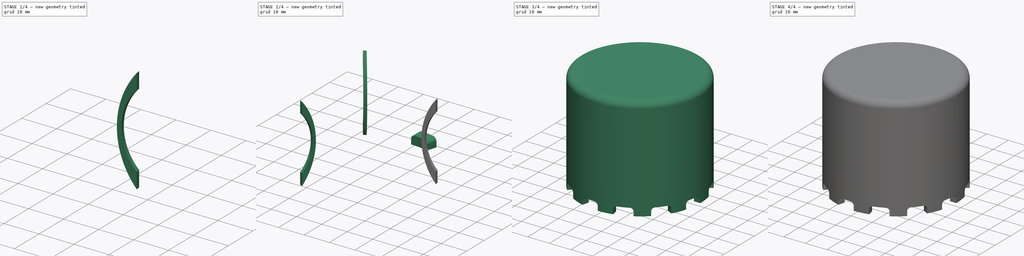
[diagram: build sequence overview — one tinted view per stage of 4, left to right]
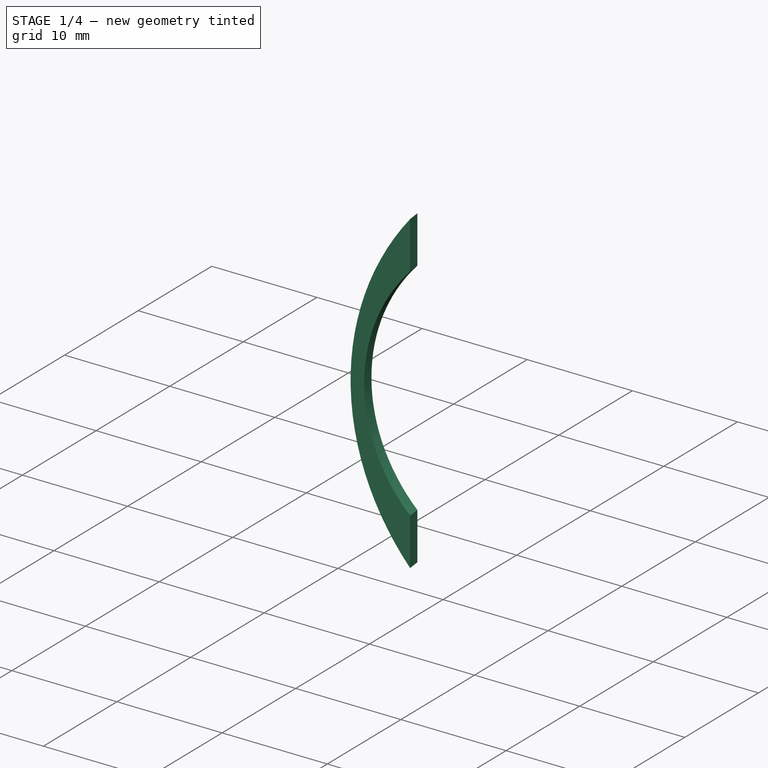
[diagram: stage 1 of 4 — iso view after this stage's code; geometry added in this stage tinted green]
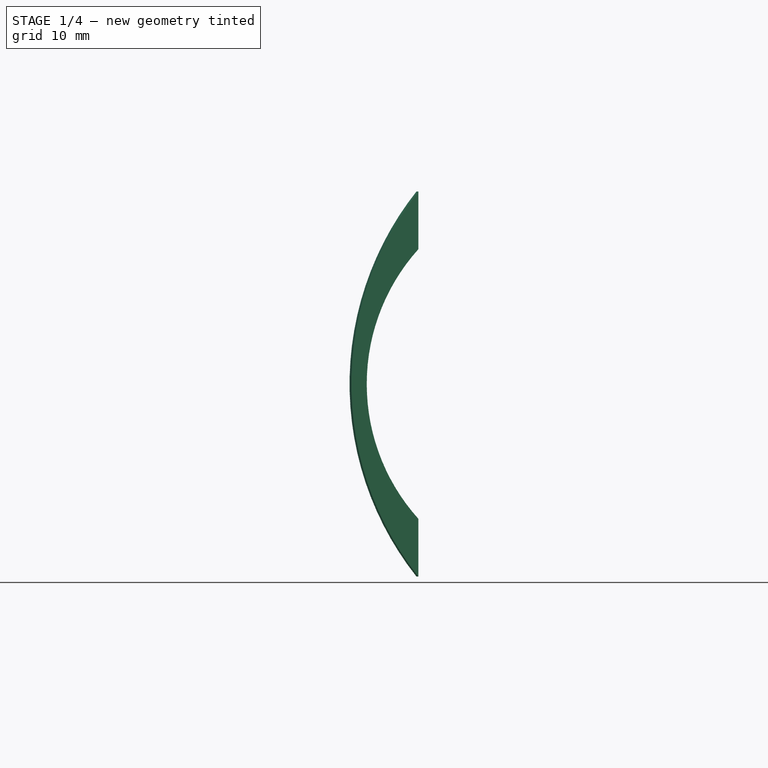
[diagram: stage 1 of 4 — front view after this stage's code; geometry added in this stage tinted green]
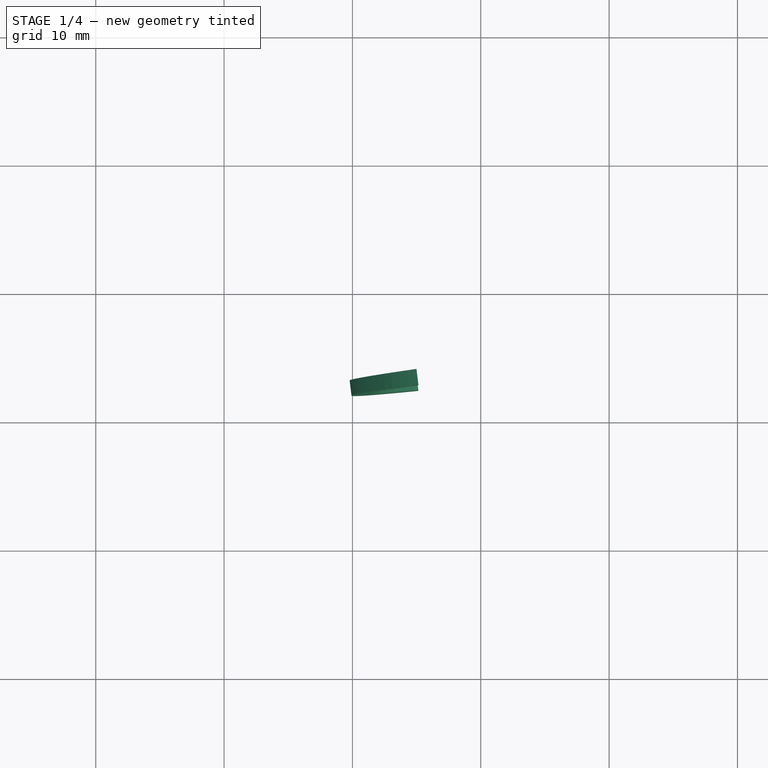
[diagram: stage 1 of 4 — top view after this stage's code; geometry added in this stage tinted green]
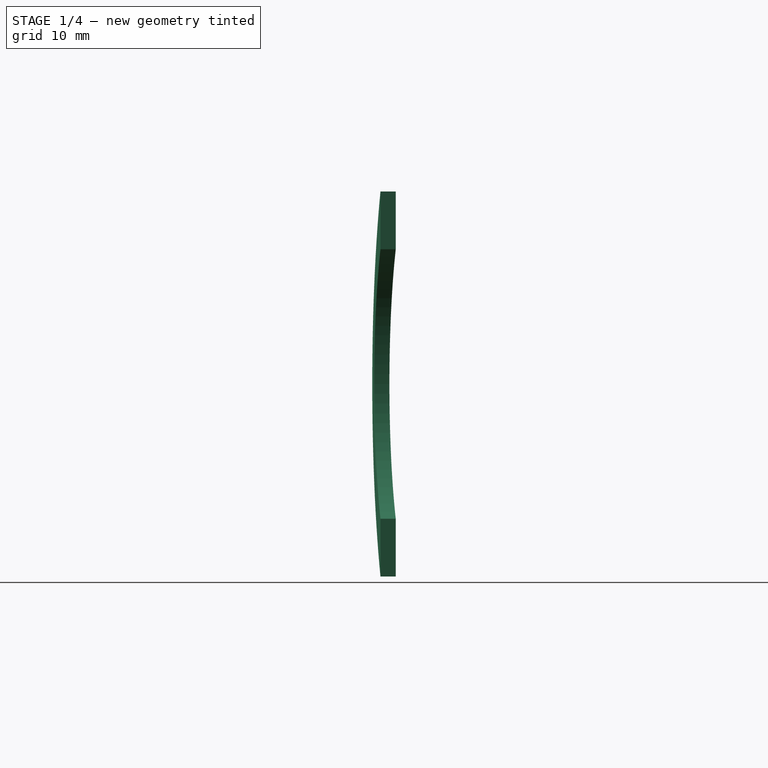
[diagram: stage 1 of 4 — right view after this stage's code; geometry added in this stage tinted green]
FCSTD DOCUMENT  (FreeCAD 0.16R6712 (Git))
Label: dome_40mm
License: CreativeCommons Attribution-ShareAlike
LicenseURL: http://creativecommons.org/licenses/by-sa/4.0/
objects: Sketcher::SketchObject×2, PartDesign::Pad×2, PartDesign::Fillet×2, Part::FeaturePython×2, Part::Cylinder×1, Part::Thickness×1, Part::Cut×1, Part::MultiFuse×1
note: 14 computed .brp shape members not serialized (recipe doc carries the construction recipe); baked Part::Feature solids carry a one-line shape summary decoded from their .brp

FEATURE [Part::Cylinder] Cylinder
  Angle = 360
  Height = 45
  Radius = 25
FEATURE [Sketcher::SketchObject] Sketch002
  Placement = pos=(0,0,0) rot=(0.99628,0.060935,0.060935;1.57452rad)
  expr: Constraints[27] = Cylinder.Height / 3
  sketch-geometry (8):
    g0: ArcOfCircle CenterX=44.0536 CenterY=16 CenterZ=0 NormalX=0 NormalY=0 NormalZ=1 Radius=24.0536 StartAngle=2.46824 EndAngle=3.81494
    g1: LineSegment [constr] StartX=0 StartY=16 StartZ=0 EndX=20 EndY=16 EndZ=0
    g2: LineSegment [constr] StartX=20 StartY=16 StartZ=0 EndX=44.0536 EndY=16 EndZ=0
    g3: LineSegment [constr] StartX=25.25 StartY=26.5 StartZ=0 EndX=25.25 EndY=5.5 EndZ=0
    g4: ArcOfCircle CenterX=36.8361 CenterY=16 CenterZ=0 NormalX=0 NormalY=0 NormalZ=1 Radius=15.6361 StartAngle=2.40533 EndAngle=3.87785
    g5: LineSegment [constr] StartX=20 StartY=16 StartZ=0 EndX=21.2 EndY=16 EndZ=0
    g6: LineSegment StartX=25.25 StartY=31 StartZ=0 EndX=25.25 EndY=26.5 EndZ=0
    g7: LineSegment StartX=25.25 StartY=5.5 StartZ=0 EndX=25.25 EndY=1 EndZ=0
  constraints (28):
    c: PointOnObject(g1,g-2)
    c: PointOnObject(g1,g0)
    c: Horizontal(g1)
    c: Coincident(g1,g2)
    c: Coincident(g2,g0)
    c: Horizontal(g2)
    c: Symmetric(g0,g0,g2)
    c: DistanceX(g1,g1) = 20
    c: DistanceX(g-1,g0) = 25.25
    c: PointOnObject(g4,g2)
    c: Coincident(g5,g1)
    c: PointOnObject(g5,g4)
    c: Horizontal(g5)
    c: DistanceX(g1,g5) = 1.2
    c: Coincident(g3,g4)
    c: PointOnObject(g3,g4)
    c: Coincident(g7,g3)
    c: Coincident(g7,g0)
    c: Vertical(g7)
    c: Vertical(g6)
    c: Coincident(g3,g6)
    c: Coincident(g3,g4)
    c: Symmetric(g3,g3,g2)
    c: Equal(g6,g7)
    c: Coincident(g0,g6)
    c: DistanceY(g6,g6) = 4.5
    c: DistanceY(g-1,g0) = 1  'offset'
    c: DistanceY(g0,g1) = 15
FEATURE [PartDesign::Pad] Pad001
  Length = 1.2
  Length2 = 100
  Midplane = true
  Placement = pos=(0,0,0) rot=(0.99628,0.060935,0.060935;1.57452rad)
  Sketch = -> Sketch002
  Type = 0
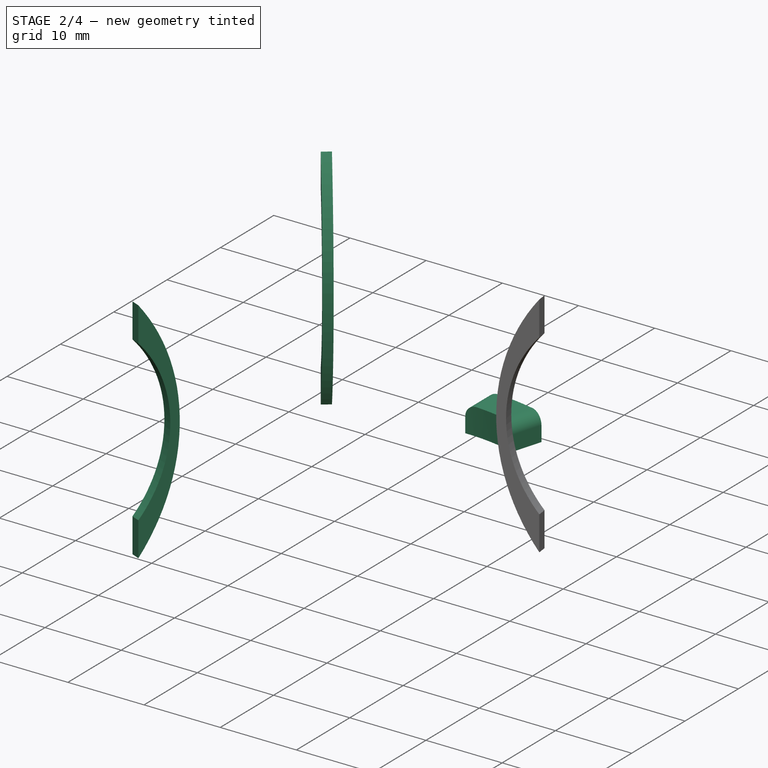
[diagram: stage 2 of 4 — iso view after this stage's code; geometry added in this stage tinted green]
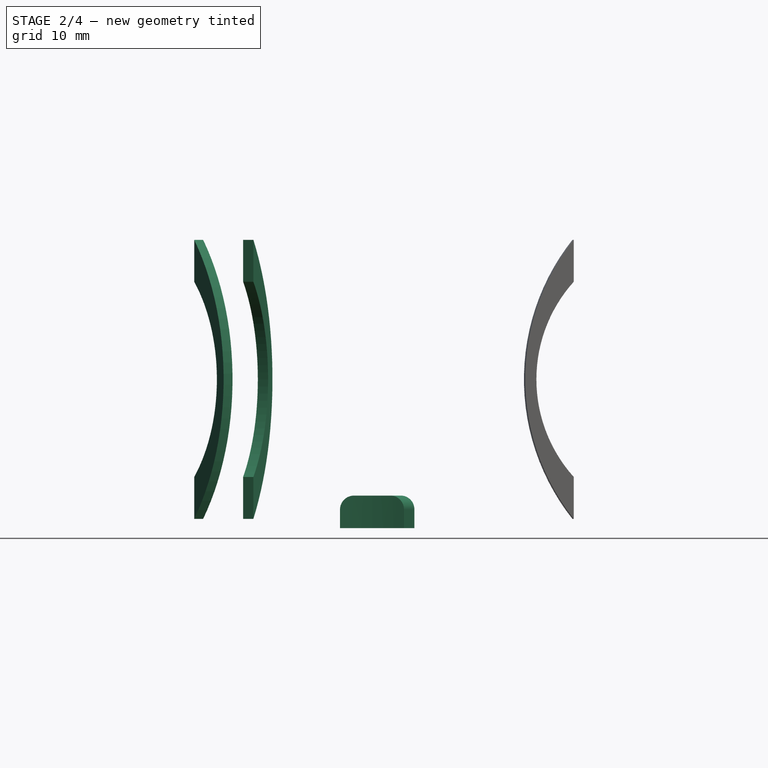
[diagram: stage 2 of 4 — front view after this stage's code; geometry added in this stage tinted green]
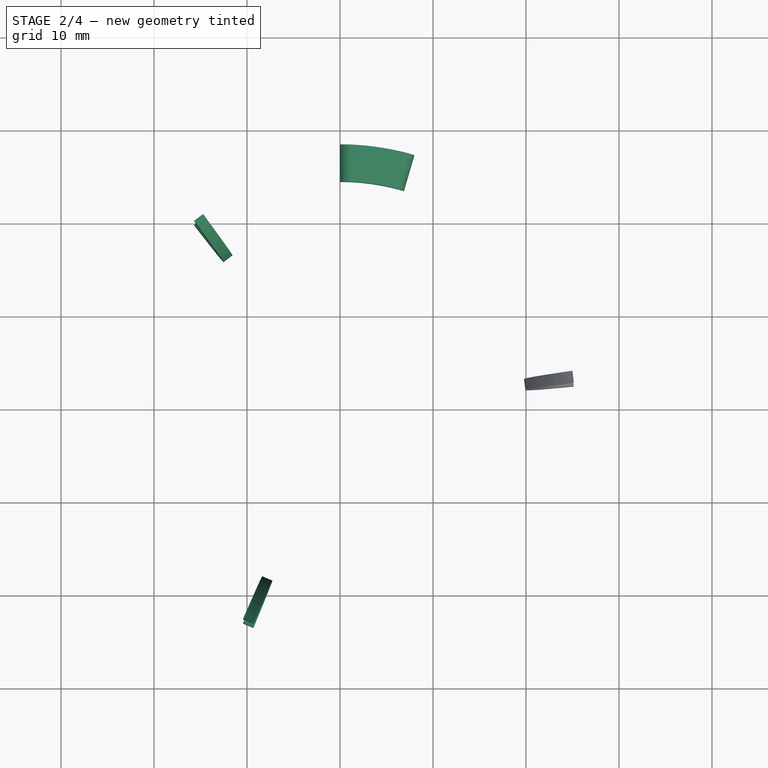
[diagram: stage 2 of 4 — top view after this stage's code; geometry added in this stage tinted green]
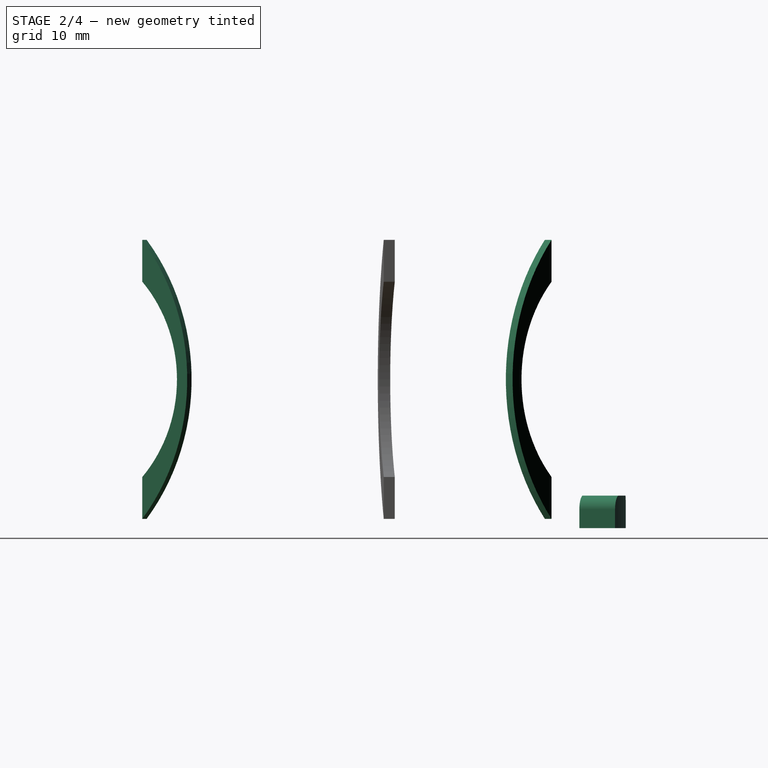
[diagram: stage 2 of 4 — right view after this stage's code; geometry added in this stage tinted green]
FEATURE [Sketcher::SketchObject] Sketch
  expr: Constraints[13] = Constraints.radius - Constraints.thickness / 2
  expr: Constraints.radius = 26.5
  sketch-geometry (5):
    g0: Circle [constr] CenterX=0 CenterY=0 CenterZ=0 NormalX=0 NormalY=0 NormalZ=1 Radius=26.5
    g1: ArcOfCircle CenterX=0 CenterY=0 CenterZ=0 NormalX=0 NormalY=0 NormalZ=1 Radius=24.5 StartAngle=1.28627 EndAngle=1.5708
    g2: ArcOfCircle CenterX=0 CenterY=0 CenterZ=0 NormalX=0 NormalY=0 NormalZ=1 Radius=28.5 StartAngle=1.28627 EndAngle=1.5708
    g3: LineSegment StartX=0 StartY=28.5 StartZ=0 EndX=0 EndY=24.5 EndZ=0
    g4: LineSegment StartX=8 StartY=27.3542 StartZ=0 EndX=6.87719 EndY=23.515 EndZ=0
  constraints (14):
    c: Coincident(g0,g-1)
    c: Radius(g0) = 26.5  'radius'
    c: Coincident(g1,g-1)
    c: Coincident(g2,g-1)
    c: Coincident(g3,g2)
    c: Coincident(g3,g1)
    c: Coincident(g4,g2)
    c: Coincident(g4,g1)
    c: Perpendicular(g1,g3)
    c: Perpendicular(g1,g4)
    c: Distance(g4) = 4  'thickness'
    c: DistanceX(g2,g2) = 8
    c: PointOnObject(g1,g-2)
    c: Distance(g-1,g1) = 24.5
FEATURE [PartDesign::Pad] Pad
  Length = 3.5
  Length2 = 100
  Sketch = -> Sketch
  Type = 0
FEATURE [PartDesign::Fillet] Fillet
  Base = -> Pad [Edge10,Edge4]
  Radius = 1.5
FEATURE [Part::FeaturePython] Array001  # Draft array (typed FeaturePython)
  Angle = 360
  ArrayType = 1
  Axis = (0,0,1)
  Base = -> Pad001
  Center = (0,0,0)
  Fuse = false
  IntervalAxis = (0,0,0)
  IntervalX = (1,0,0)
  IntervalY = (0,1,0)
  IntervalZ = (0,0,0)
  NumberPolar = 3
  NumberX = 0
  NumberY = 0
  NumberZ = 0
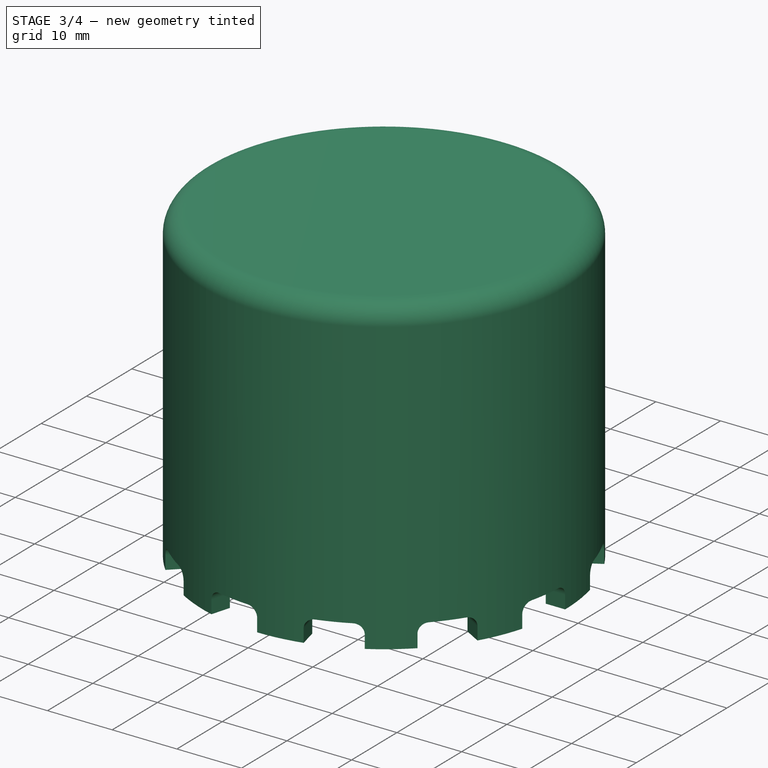
[diagram: stage 3 of 4 — iso view after this stage's code; geometry added in this stage tinted green]
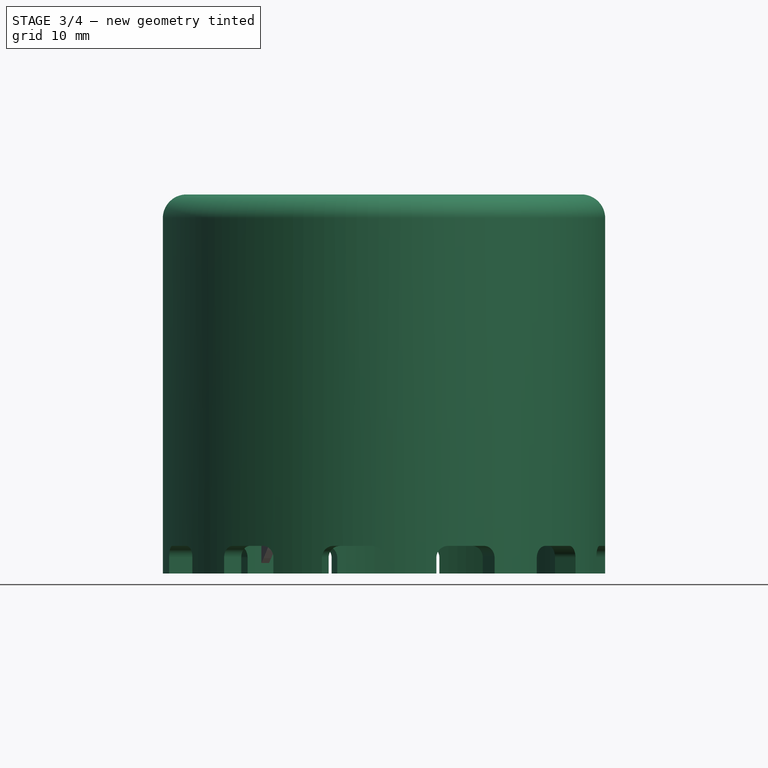
[diagram: stage 3 of 4 — front view after this stage's code; geometry added in this stage tinted green]
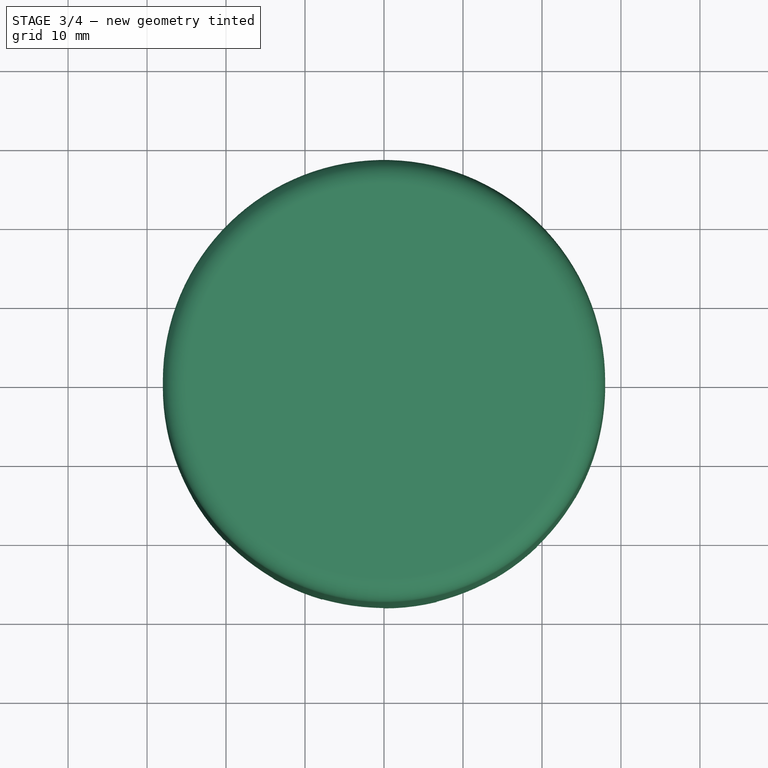
[diagram: stage 3 of 4 — top view after this stage's code; geometry added in this stage tinted green]
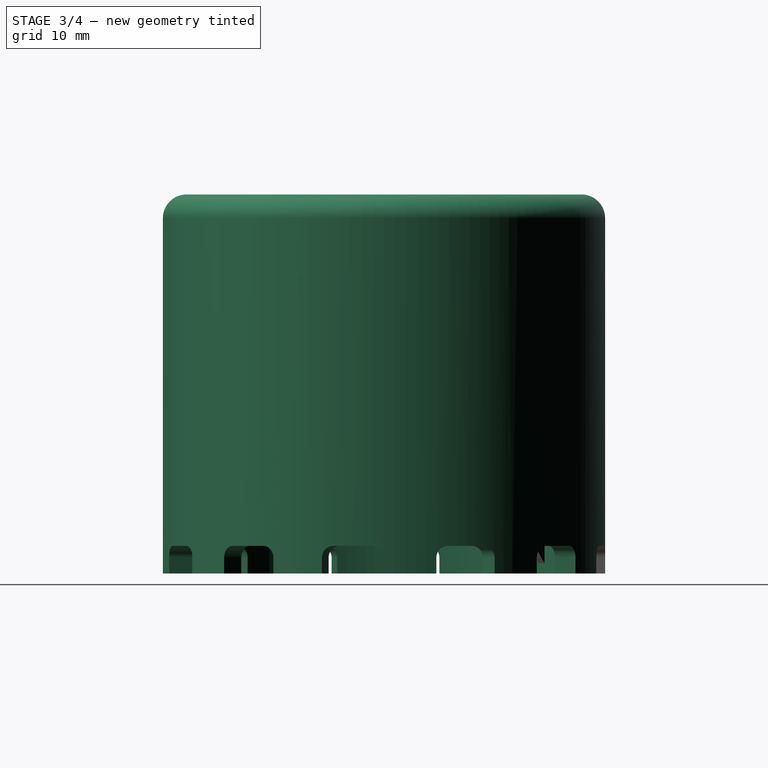
[diagram: stage 3 of 4 — right view after this stage's code; geometry added in this stage tinted green]
FEATURE [Part::Thickness] Thickness
  Faces = -> Cylinder [Face3]
  Intersection = false
  Join = 0
  Mode = 0
  SelfIntersection = false
  Value = 3
FEATURE [Part::FeaturePython] Array  # Draft array (typed FeaturePython)
  Angle = 360
  ArrayType = 1
  Axis = (0,0,1)
  Base = -> Fillet
  Center = (0,0,0)
  Fuse = false
  IntervalAxis = (0,0,0)
  IntervalX = (1,0,0)
  IntervalY = (0,1,0)
  IntervalZ = (0,0,0)
  NumberPolar = 12
  NumberX = 2
  NumberY = 2
  NumberZ = 1
FEATURE [Part::Cut] Cut
  Base = -> Thickness
  Tool = -> Array
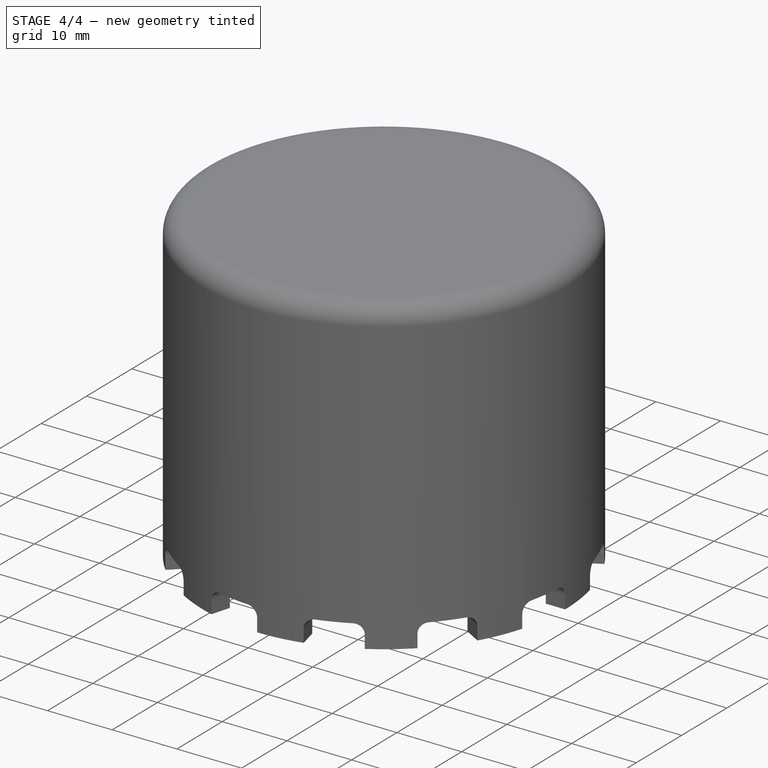
[diagram: stage 4 of 4 — iso view after this stage's code; geometry added in this stage tinted green]
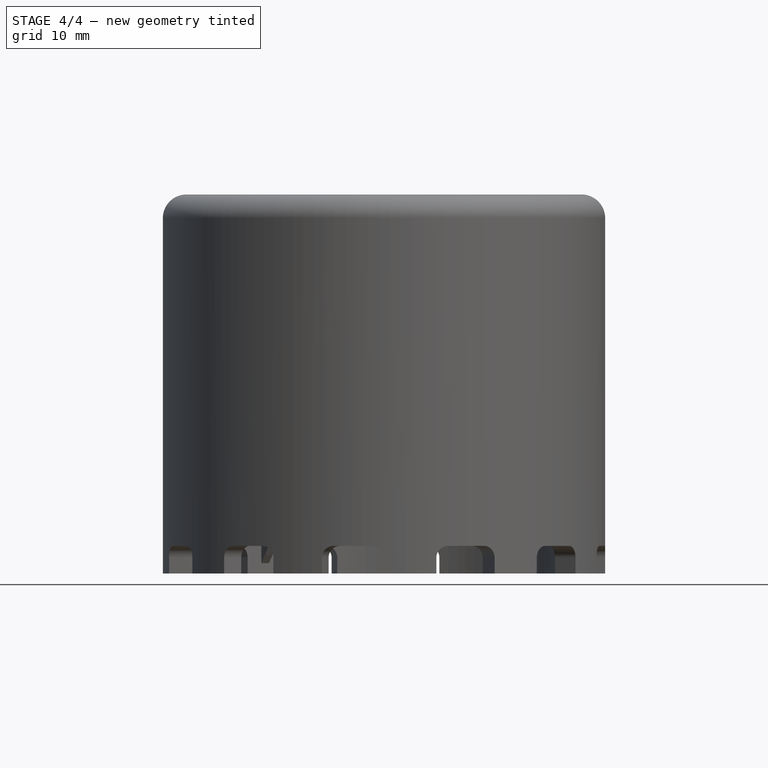
[diagram: stage 4 of 4 — front view after this stage's code; geometry added in this stage tinted green]
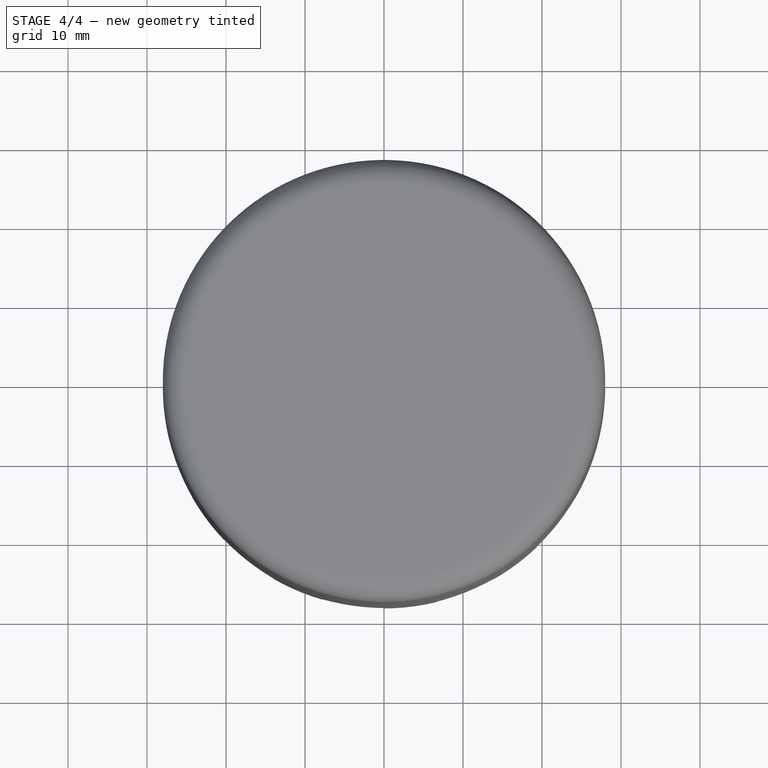
[diagram: stage 4 of 4 — top view after this stage's code; geometry added in this stage tinted green]
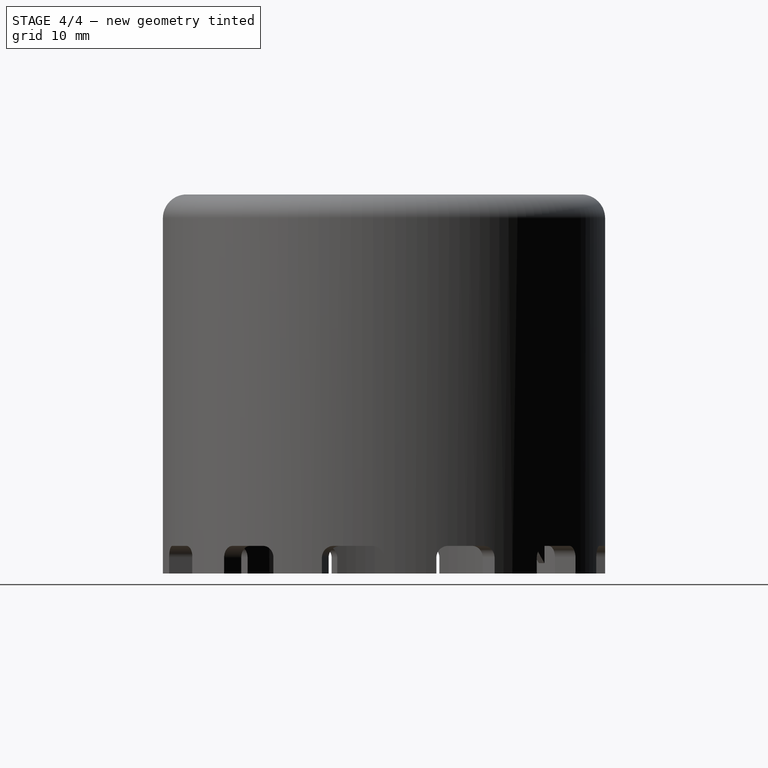
[diagram: stage 4 of 4 — right view after this stage's code; geometry added in this stage tinted green]
FEATURE [Part::MultiFuse] Fusion
  Shapes = -> [Cut,Array001]
FEATURE [PartDesign::Fillet] Fillet001
  Base = -> Fusion [Edge79]
  Radius = 2
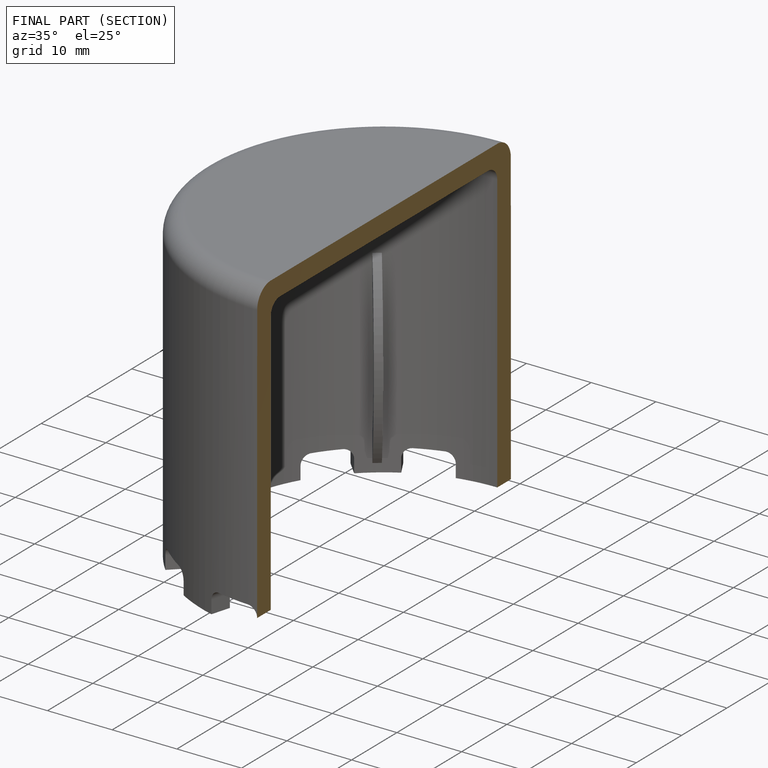
[diagram: finished part — half-section view (interior)]
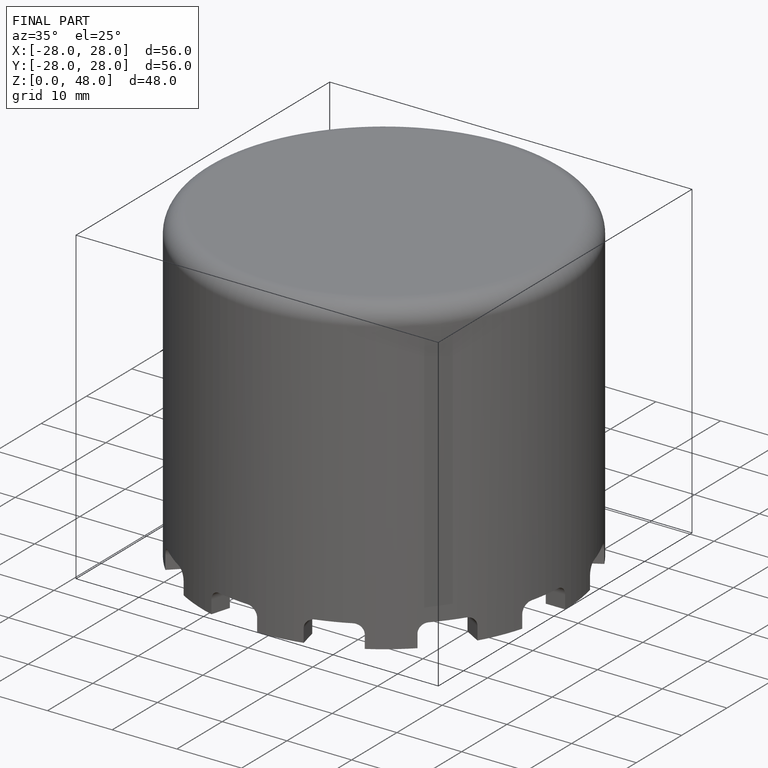
[diagram: finished part — iso view with bounding-box wireframe]
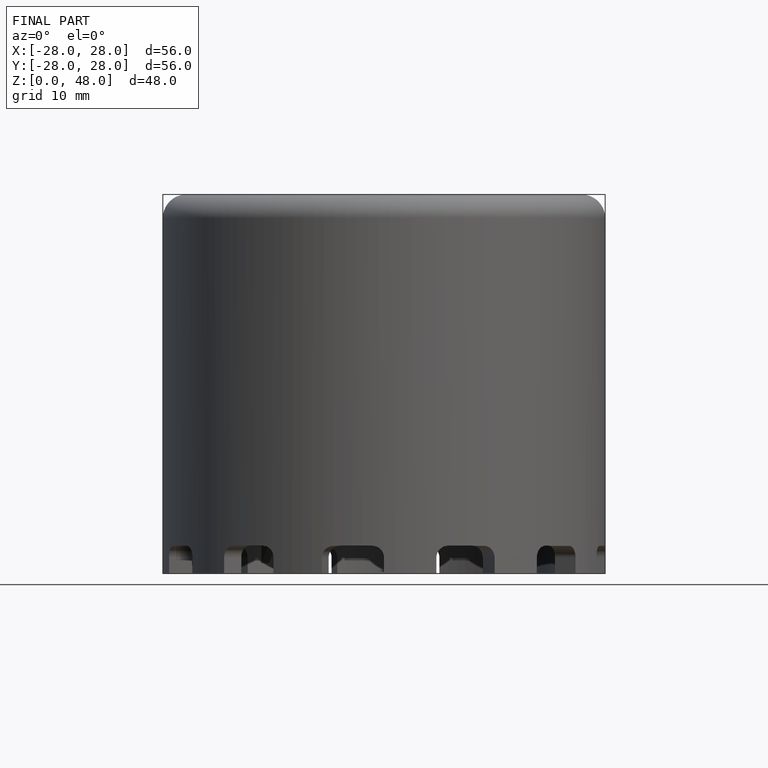
[diagram: finished part — front view with bounding-box wireframe]
